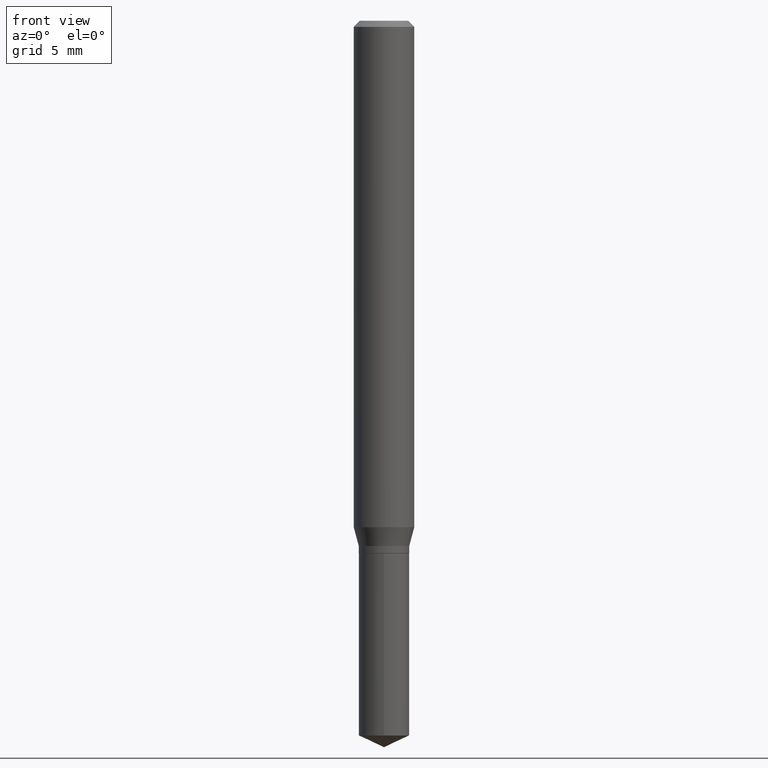
[diagram: clean part render]
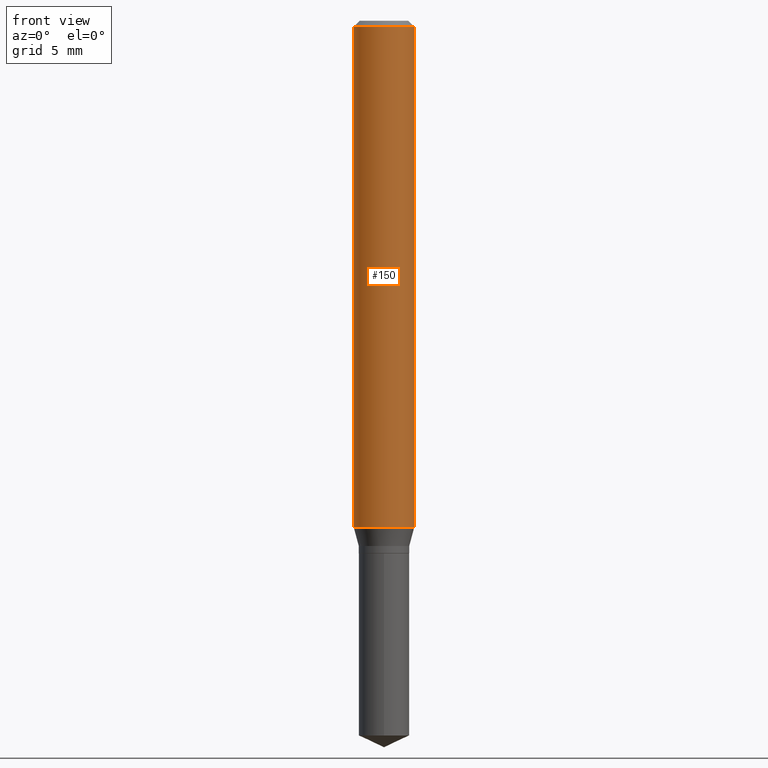
[diagram: same view with one face highlighted and labeled with its STEP entity id]
A machine part, front view. The second image highlights one B-rep face of the part: STEP entity #150.
In plain terms, the highlighted cylindrical surface (edge-blend (fillet) strip) has radius 1.5875 mm, axis along (-0, 0, 1).
Its self-contained STEP definition (entity closure, byte-faithful):
#8 = CARTESIAN_POINT ( 'NONE',  ( 0.000000000000000000, 0.000000000000000000, 0.000000000000000000 ) ) ;
#9 = AXIS2_PLACEMENT_3D ( 'NONE', #8, #160, #309 ) ;
#10 = ORIENTED_EDGE ( 'NONE', *, *, #23, .T. ) ;
#17 = DIRECTION ( 'NONE',  ( -2.445468806185136597E-29, 3.491481338843145583E-15, 1.000000000000000000 ) ) ;
#23 = EDGE_CURVE ( 'NONE', #352, #296, #408, .T. ) ;
#80 = VECTOR ( 'NONE', #406, 39.37007874015748143 ) ;
#81 = CARTESIAN_POINT ( 'NONE',  ( 2.557405920255531666E-29, -3.651297871326509428E-15, -1.045773274141661879 ) ) ;
#91 = DIRECTION ( 'NONE',  ( -2.445468806185136597E-29, 3.491481338843145583E-15, 1.000000000000000000 ) ) ;
#105 = AXIS2_PLACEMENT_3D ( 'NONE', #169, #17, #343 ) ;
#108 = EDGE_LOOP ( 'NONE', ( #163, #439, #10, #478 ) ) ;
#110 = EDGE_CURVE ( 'NONE', #251, #352, #418, .T. ) ;
#145 = EDGE_CURVE ( 'NONE', #291, #296, #244, .T. ) ;
#146 = LINE ( 'NONE', #365, #181 ) ;
#150 = ADVANCED_FACE ( 'NONE', ( #467 ), #322, .T. ) ;
#160 = DIRECTION ( 'NONE',  ( -2.445468806185136597E-29, 3.491481338843145583E-15, 1.000000000000000000 ) ) ;
#163 = ORIENTED_EDGE ( 'NONE', *, *, #290, .F. ) ;
#169 = CARTESIAN_POINT ( 'NONE',  ( 3.056836007731442729E-31, -4.364351673553962300E-17, -0.01250000000000008916 ) ) ;
#181 = VECTOR ( 'NONE', #362, 39.37007874015748143 ) ;
#244 = CIRCLE ( 'NONE', #105, 0.06250000000000000000 ) ;
#251 = VERTEX_POINT ( 'NONE', #332 ) ;
#271 = AXIS2_PLACEMENT_3D ( 'NONE', #81, #91, #359 ) ;
#290 = EDGE_CURVE ( 'NONE', #251, #291, #146, .T. ) ;
#291 = VERTEX_POINT ( 'NONE', #297 ) ;
#296 = VERTEX_POINT ( 'NONE', #412 ) ;
#297 = CARTESIAN_POINT ( 'NONE',  ( -0.06250000000000000000, -1.403381484180960498E-15, -0.01250000000000008916 ) ) ;
#309 = DIRECTION ( 'NONE',  ( 1.000000000000000000, -6.982962677686266711E-15, 4.876176775795935793E-29 ) ) ;
#322 = CYLINDRICAL_SURFACE ( 'NONE', #9, 0.06250000000000006939 ) ;
#332 = CARTESIAN_POINT ( 'NONE',  ( -0.06250000000000012490, -3.207208661476446023E-15, -1.045773274141661879 ) ) ;
#343 = DIRECTION ( 'NONE',  ( 1.000000000000000000, -6.982962677686266711E-15, 0.000000000000000000 ) ) ;
#352 = VERTEX_POINT ( 'NONE', #370 ) ;
#359 = DIRECTION ( 'NONE',  ( 1.000000000000000000, -6.982962677686264344E-15, 0.000000000000000000 ) ) ;
#360 = CARTESIAN_POINT ( 'NONE',  ( 0.06250000000000006939, -4.364351673553921624E-16, 3.047610484872463374E-30 ) ) ;
#362 = DIRECTION ( 'NONE',  ( -2.445468806185136877E-29, 3.491481338843145188E-15, 1.000000000000000000 ) ) ;
#365 = CARTESIAN_POINT ( 'NONE',  ( -0.06250000000000006939, 4.440892098500631092E-16, -3.074334431409319267E-30 ) ) ;
#370 = CARTESIAN_POINT ( 'NONE',  ( 0.06250000000000012490, -4.087733038681901886E-15, -1.045773274141661879 ) ) ;
#406 = DIRECTION ( 'NONE',  ( -2.445468806185136877E-29, 3.491481338843145188E-15, 1.000000000000000000 ) ) ;
#408 = LINE ( 'NONE', #360, #80 ) ;
#412 = CARTESIAN_POINT ( 'NONE',  ( 0.06250000000000000000, -4.800786840909313294E-16, -0.01250000000000008916 ) ) ;
#418 = CIRCLE ( 'NONE', #271, 0.06250000000000012490 ) ;
#439 = ORIENTED_EDGE ( 'NONE', *, *, #110, .T. ) ;
#467 = FACE_OUTER_BOUND ( 'NONE', #108, .T. ) ;
#478 = ORIENTED_EDGE ( 'NONE', *, *, #145, .F. ) ;